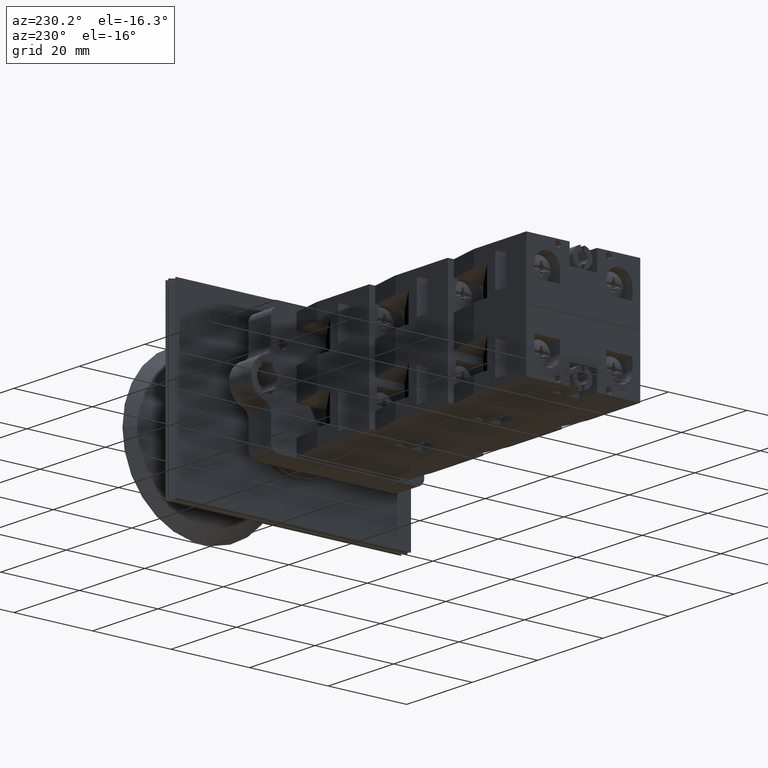
[diagram: clean part render]
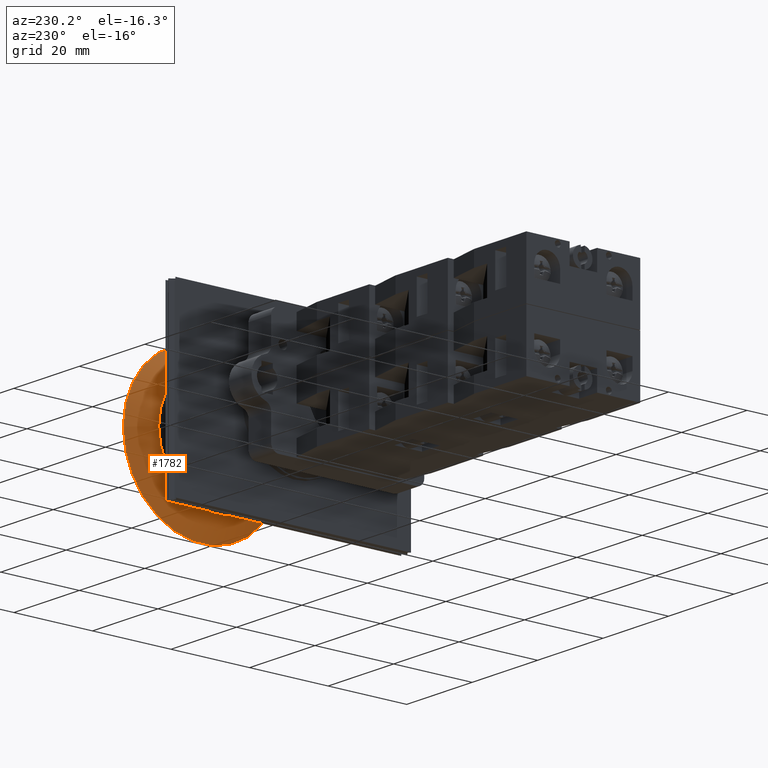
[diagram: same view with one face highlighted and labeled with its STEP entity id]
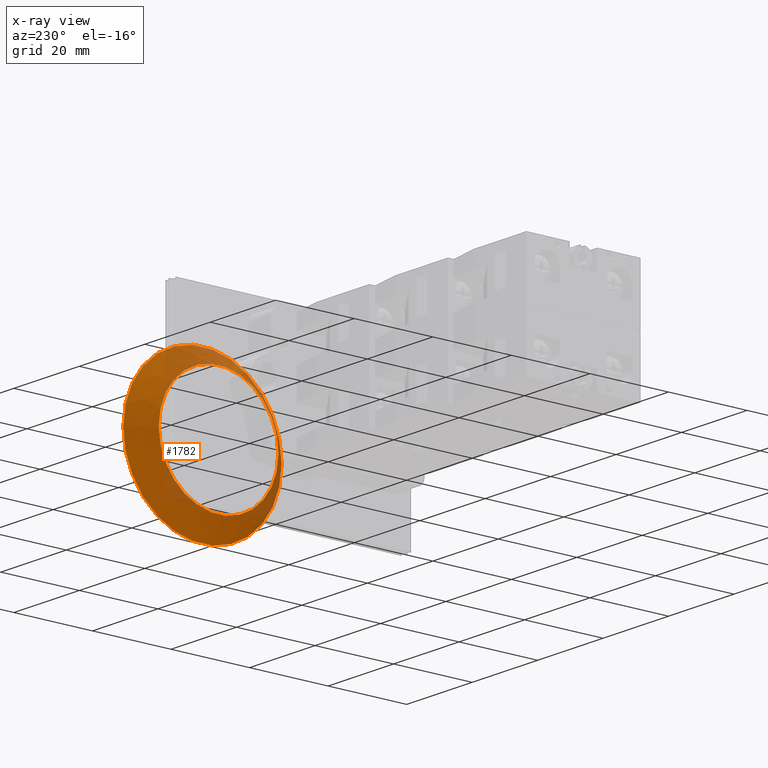
[diagram: x-ray of the same camera — body ghosted, the highlighted face saturated]
A machine part, auxiliary view. The second image highlights one B-rep face of the part: STEP entity #1782.
The next image is the same camera in x-ray: the body ghosted, the highlighted face saturated — about 29% of this face is hidden behind the body in this view.
In plain terms, the highlighted conical surface has half-angle 45 deg.
Its self-contained STEP definition (entity closure, byte-faithful):
#1748=CARTESIAN_POINT('',(10.493945402827860,16.365625653354499,0.0));
#1749=VERTEX_POINT('',#1748);
#1750=CARTESIAN_POINT('',(10.493945402827860,1.129839215727505,0.0));
#1751=DIRECTION('',(1.0,0.0,0.0));
#1752=DIRECTION('',(0.0,1.0,0.0));
#1753=AXIS2_PLACEMENT_3D('',#1750,#1751,#1752);
#1754=CIRCLE('',#1753,15.235786437626995);
#1755=EDGE_CURVE('',#1749,#1749,#1754,.T.);
#1763=CARTESIAN_POINT('',(12.946762862133014,1.129839215727505,0.0));
#1764=DIRECTION('',(1.0,0.0,0.0));
#1765=DIRECTION('',(0.0,1.0,0.0));
#1766=AXIS2_PLACEMENT_3D('',#1763,#1764,#1765);
#1767=CONICAL_SURFACE('',#1766,17.688603896932150,45.000000000000043);
#1768=CARTESIAN_POINT('',(15.399580321438169,21.271260571964813,0.0));
#1769=VERTEX_POINT('',#1768);
#1770=CARTESIAN_POINT('',(15.399580321438165,1.129839215727505,0.0));
#1771=DIRECTION('',(1.0,0.0,0.0));
#1772=DIRECTION('',(0.0,1.0,0.0));
#1773=AXIS2_PLACEMENT_3D('',#1770,#1771,#1772);
#1774=CIRCLE('',#1773,20.141421356237309);
#1775=EDGE_CURVE('',#1769,#1769,#1774,.T.);
#1776=ORIENTED_EDGE('',*,*,#1775,.F.);
#1777=EDGE_LOOP('',(#1776));
#1778=FACE_OUTER_BOUND('',#1777,.T.);
#1779=ORIENTED_EDGE('',*,*,#1755,.T.);
#1780=EDGE_LOOP('',(#1779));
#1781=FACE_BOUND('',#1780,.T.);
#1782=ADVANCED_FACE('',(#1778,#1781),#1767,.T.);